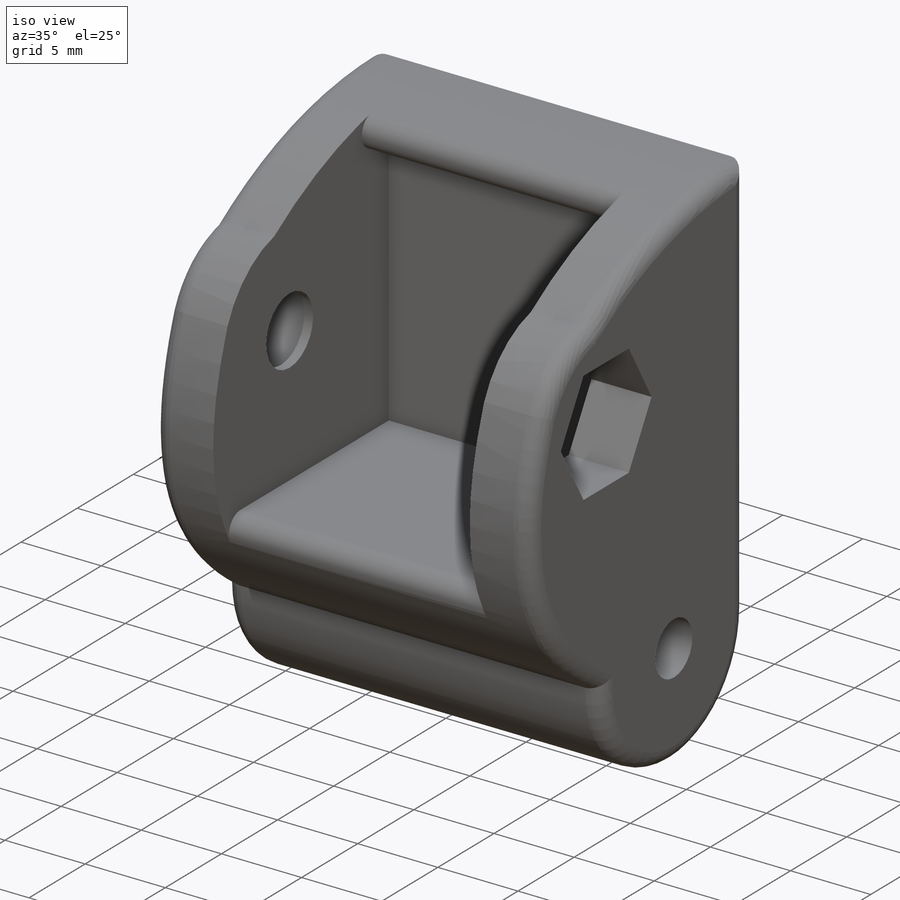
[diagram: iso view]
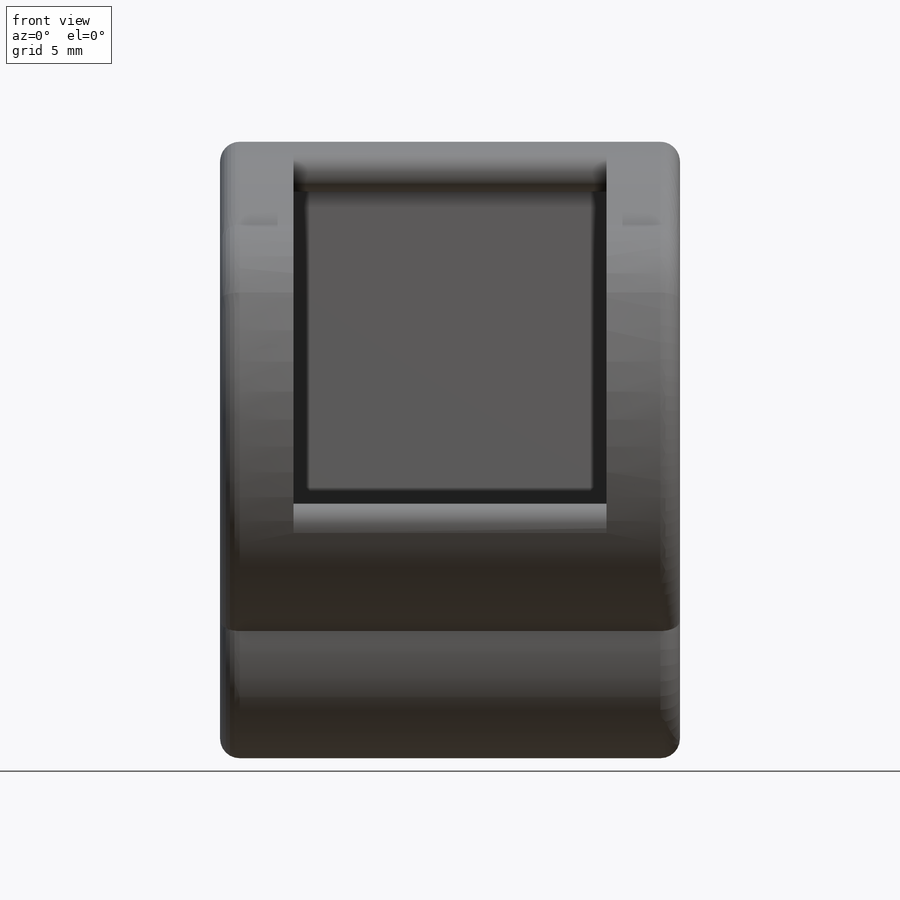
[diagram: front view]
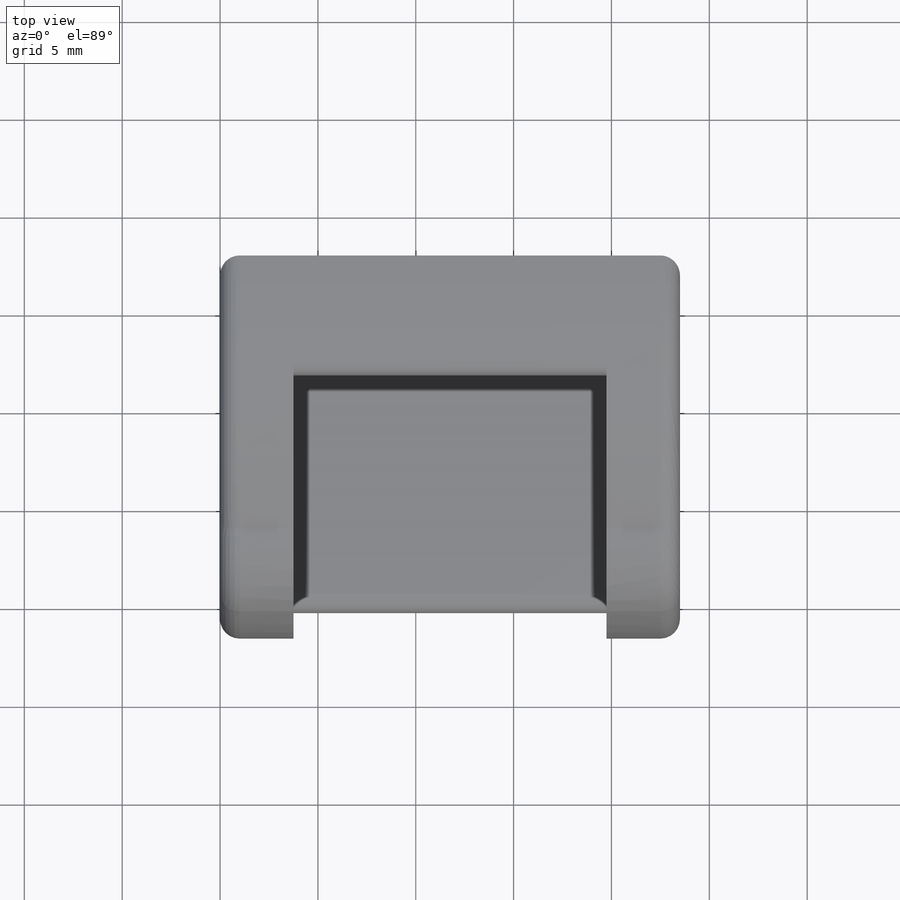
[diagram: top view]
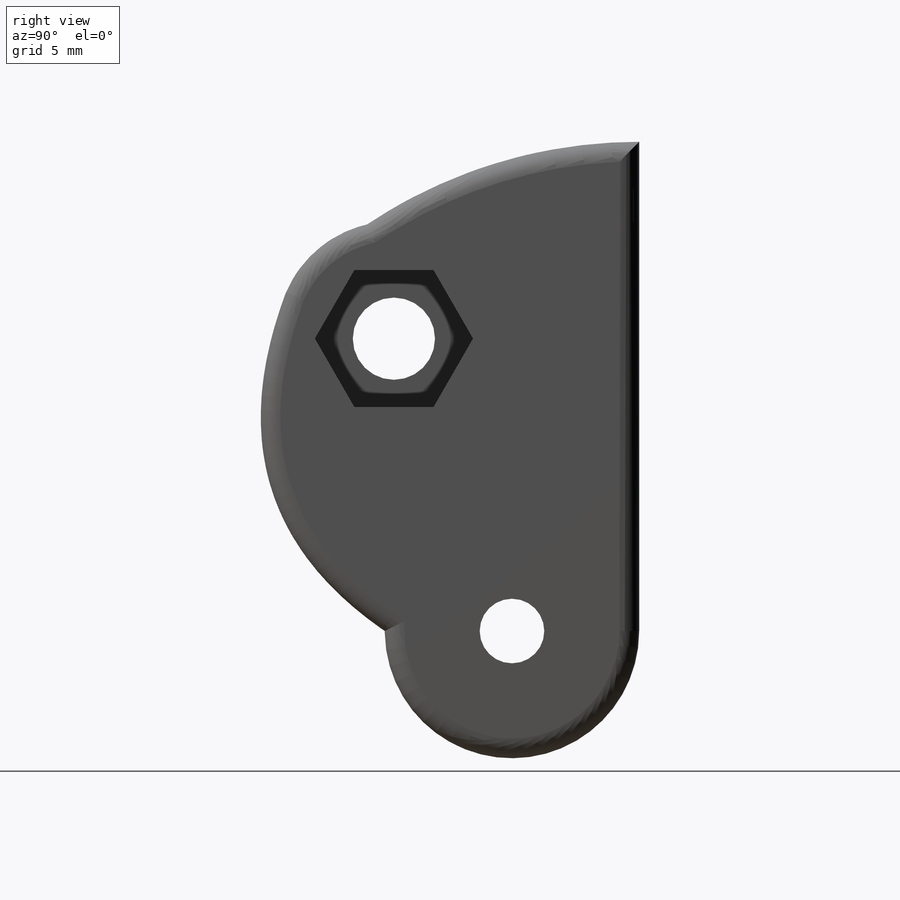
[diagram: right view]
SOLIDWORKS PART (.sldprt)
format: sldprt  version: not decoded by parser v0  size: 428,544 bytes
history: native  units: mm
features: sketch x9, cut_extrude x6, plane x3, extrude x3, material x1, fillet x1, chamfer x1 (+9 scaffold rows collapsed)
feature tree (33):
  scaffold x9  (default folders/planes/origin — collapsed)
  material  "Material <sin especificar>"
  plane  "Alzado"
  plane  "Planta"
  plane  "Vista lateral"
  sketch  "Croquis1"  dims[c1.D1=16.0mm c1.D3=50.0mm c1.D4=5.0mm c1.D5=4.3mm c2.D3=4.0mm c2.D5=3.3mm c2.D6=13.0mm c2.D7=25.0mm c2.D1=16.0mm c2.D2=16.0mm c3.D3=5.0mm c3.D8=16.0mm c3.D2=~20.804378mm c4.D2=45.0deg c5.D2=8.0mm c6.D2=55.0deg c6.D3=18.0mm c6.D1=25.0mm c7.D1=40.0deg c7.D4=5.5mm]
  extrude  "Saliente-Extruir2"  Depth=23.5mm
  sketch  "Croquis2"  dims[D1=2.55mm D2=16.0mm D3=6.25mm D4=6.5mm]
  cut_extrude  "Cortar-Extruir2"  [1 undecoded]
  sketch  "Croquis1<5>"  dims[D1=31.3mm]
  sketch  "Croquis3"  dims[D1=7.0mm D2=12.0mm]
  extrude  "Saliente-Extruir7"  [1 undecoded]
  cut_extrude  "Cortar-Extruir5"  [1 undecoded]
  sketch  "Croquis3<6>"  dims[D1=5.2mm]
  sketch  "Croquis4"  dims[D1=7.0mm]
  cut_extrude  "Cortar-Extruir6"  Depth=5.2mm
  cut_extrude  "Cortar-Extruir7"  Depth=21.3mm
  sketch  "Croquis5"  dims[D2=4.5mm D1=8.0mm D3=3.0mm]
  cut_extrude  "Cortar-Extruir8"  Depth=2mm
  sketch  "Croquis7"  dims[D1=7.3mm D2=4.2mm]
  sketch  "Croquis6"
  cut_extrude  "Cortar-Extruir9"  Depth=32mm
  extrude  "Saliente-Extruir8"  Depth=0.55mm
  fillet  "Redondeo6"  Radius=1mm
  chamfer  "Chaflán4"  Distance=0.8mm Angle=45deg
decode coverage: 16 of 20 modeling features carry decoded parameters
note: ~ marks probable driven/reference dimensions
note: 3 parameter values undecoded
summary: no parameter record found for 3 features
note: suppression state not decoded; provenance and decode notes live in map.json
